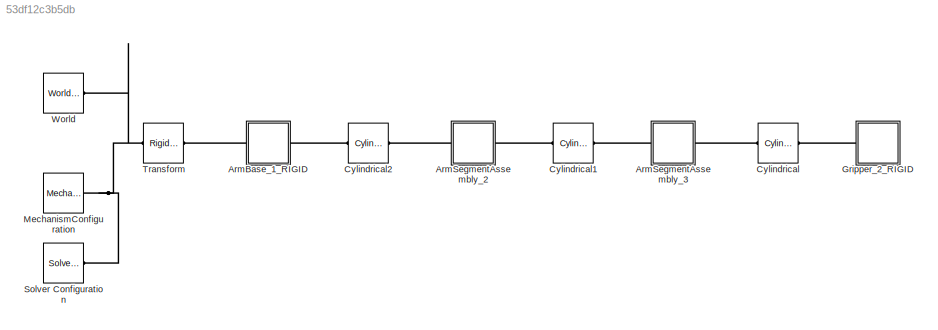
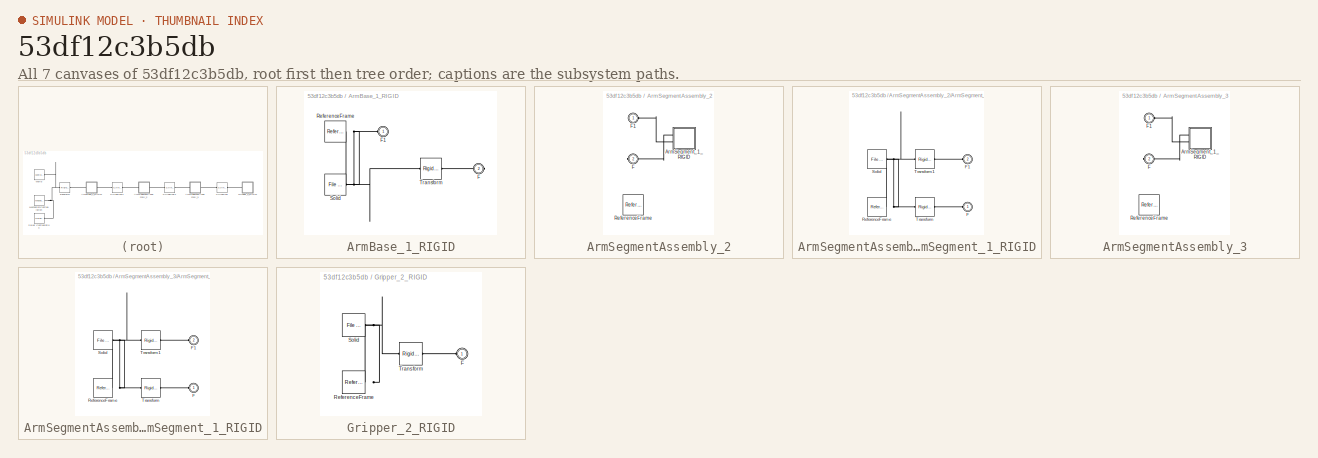
[diagram: thumbnail index - all 7 canvases of the model, root first then tree order]
MODEL slx_53df12c3b5db
KIND model
CONFIG AbsTol = auto
CONFIG EnableMultiTasking = off
CONFIG FixedStep = auto
CONFIG MaxStep = auto
CONFIG MinStep = auto
CONFIG RelTol = 1e-3
CONFIG SampleTimeConstraint = Unconstrained
CONFIG SolverName = VariableStepAuto
CONFIG StartTime = 0.0
CONFIG StopTime = 10.0
WORKSPACE source: external: MATLAB File  (data not in archive)
BLOCK [SubSystem] ArmBase_1_RIGID
  Ports = [0, 0, 0, 0, 0, 1, 1]
  RequestExecContextInheritance = off
BLOCK [PMIOPort] ArmBase_1_RIGID/F
  Port = 2
  Side = Right
BLOCK [PMIOPort] ArmBase_1_RIGID/F1
  Side = Left
BLOCK [Reference] ArmBase_1_RIGID/ReferenceFrame  REF=sm_lib/Frames and
Transforms/Reference
Frame
  Ports = [0, 0, 0, 0, 0, 0, 1]
  SourceBlock = sm_lib/Frames and\nTransforms/Reference\nFrame
  SourceProductBaseCode = MS
  SourceType = Reference\nFrame
BLOCK [Reference] ArmBase_1_RIGID/Solid  REF=sm_lib/Body Elements/File Solid
  Ports = [0, 0, 0, 0, 0, 0, 1]
  SourceBlock = sm_lib/Body Elements/File Solid
  SourceProductBaseCode = MS
  SourceType = File Solid
BLOCK [Reference] ArmBase_1_RIGID/Transform  REF=sm_lib/Frames and
Transforms/Rigid
Transform
  Ports = [0, 0, 0, 0, 0, 1, 1]
  SourceBlock = sm_lib/Frames and\nTransforms/Rigid\nTransform
  SourceProductBaseCode = MS
  SourceType = Rigid\nTransform
BLOCK [SubSystem] ArmSegmentAssembly_2
  Ports = [0, 0, 0, 0, 0, 1, 1]
  RequestExecContextInheritance = off
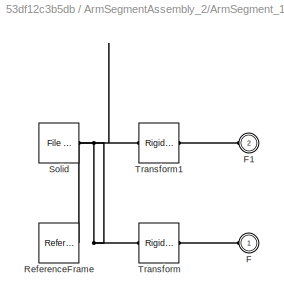
BLOCK [SubSystem] ArmSegmentAssembly_2/ArmSegment_1_RIGID
  Ports = [0, 0, 0, 0, 0, 2]
  RequestExecContextInheritance = off
BLOCK [PMIOPort] ArmSegmentAssembly_2/ArmSegment_1_RIGID/F
  Side = Left
BLOCK [PMIOPort] ArmSegmentAssembly_2/ArmSegment_1_RIGID/F1
  Port = 2
  Side = Left
BLOCK [Reference] ArmSegmentAssembly_2/ArmSegment_1_RIGID/ReferenceFrame  REF=sm_lib/Frames and
Transforms/Reference
Frame
  Ports = [0, 0, 0, 0, 0, 0, 1]
  SourceBlock = sm_lib/Frames and\nTransforms/Reference\nFrame
  SourceProductBaseCode = MS
  SourceType = Reference\nFrame
BLOCK [Reference] ArmSegmentAssembly_2/ArmSegment_1_RIGID/Solid  REF=sm_lib/Body Elements/File Solid
  Ports = [0, 0, 0, 0, 0, 0, 1]
  SourceBlock = sm_lib/Body Elements/File Solid
  SourceProductBaseCode = MS
  SourceType = File Solid
BLOCK [Reference] ArmSegmentAssembly_2/ArmSegment_1_RIGID/Transform  REF=sm_lib/Frames and
Transforms/Rigid
Transform
  Ports = [0, 0, 0, 0, 0, 1, 1]
  SourceBlock = sm_lib/Frames and\nTransforms/Rigid\nTransform
  SourceProductBaseCode = MS
  SourceType = Rigid\nTransform
BLOCK [Reference] ArmSegmentAssembly_2/ArmSegment_1_RIGID/Transform1  REF=sm_lib/Frames and
Transforms/Rigid
Transform
  Ports = [0, 0, 0, 0, 0, 1, 1]
  SourceBlock = sm_lib/Frames and\nTransforms/Rigid\nTransform
  SourceProductBaseCode = MS
  SourceType = Rigid\nTransform
BLOCK [PMIOPort] ArmSegmentAssembly_2/F
  Port = 2
  Side = Right
BLOCK [PMIOPort] ArmSegmentAssembly_2/F1
  Side = Left
BLOCK [Reference] ArmSegmentAssembly_2/ReferenceFrame  REF=sm_lib/Frames and
Transforms/Reference
Frame
  Ports = [0, 0, 0, 0, 0, 0, 1]
  SourceBlock = sm_lib/Frames and\nTransforms/Reference\nFrame
  SourceProductBaseCode = MS
  SourceType = Reference\nFrame
BLOCK [SubSystem] ArmSegmentAssembly_3
  Ports = [0, 0, 0, 0, 0, 1, 1]
  RequestExecContextInheritance = off
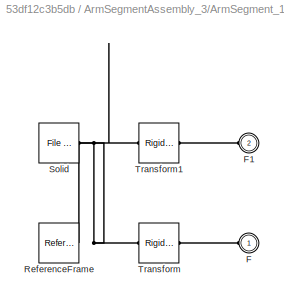
BLOCK [SubSystem] ArmSegmentAssembly_3/ArmSegment_1_RIGID
  Ports = [0, 0, 0, 0, 0, 2]
  RequestExecContextInheritance = off
BLOCK [PMIOPort] ArmSegmentAssembly_3/ArmSegment_1_RIGID/F
  Side = Left
BLOCK [PMIOPort] ArmSegmentAssembly_3/ArmSegment_1_RIGID/F1
  Port = 2
  Side = Left
BLOCK [Reference] ArmSegmentAssembly_3/ArmSegment_1_RIGID/ReferenceFrame  REF=sm_lib/Frames and
Transforms/Reference
Frame
  Ports = [0, 0, 0, 0, 0, 0, 1]
  SourceBlock = sm_lib/Frames and\nTransforms/Reference\nFrame
  SourceProductBaseCode = MS
  SourceType = Reference\nFrame
BLOCK [Reference] ArmSegmentAssembly_3/ArmSegment_1_RIGID/Solid  REF=sm_lib/Body Elements/File Solid
  Ports = [0, 0, 0, 0, 0, 0, 1]
  SourceBlock = sm_lib/Body Elements/File Solid
  SourceProductBaseCode = MS
  SourceType = File Solid
BLOCK [Reference] ArmSegmentAssembly_3/ArmSegment_1_RIGID/Transform  REF=sm_lib/Frames and
Transforms/Rigid
Transform
  Ports = [0, 0, 0, 0, 0, 1, 1]
  SourceBlock = sm_lib/Frames and\nTransforms/Rigid\nTransform
  SourceProductBaseCode = MS
  SourceType = Rigid\nTransform
BLOCK [Reference] ArmSegmentAssembly_3/ArmSegment_1_RIGID/Transform1  REF=sm_lib/Frames and
Transforms/Rigid
Transform
  Ports = [0, 0, 0, 0, 0, 1, 1]
  SourceBlock = sm_lib/Frames and\nTransforms/Rigid\nTransform
  SourceProductBaseCode = MS
  SourceType = Rigid\nTransform
BLOCK [PMIOPort] ArmSegmentAssembly_3/F
  Port = 2
  Side = Right
BLOCK [PMIOPort] ArmSegmentAssembly_3/F1
  Side = Left
BLOCK [Reference] ArmSegmentAssembly_3/ReferenceFrame  REF=sm_lib/Frames and
Transforms/Reference
Frame
  Ports = [0, 0, 0, 0, 0, 0, 1]
  SourceBlock = sm_lib/Frames and\nTransforms/Reference\nFrame
  SourceProductBaseCode = MS
  SourceType = Reference\nFrame
BLOCK [Reference] Cylindrical  REF=sm_lib/Joints/Cylindrical
Joint
  Ports = [0, 0, 0, 0, 0, 1, 1]
  SourceBlock = sm_lib/Joints/Cylindrical\nJoint
  SourceProductBaseCode = MS
  SourceType = Cylindrical\nJoint
BLOCK [Reference] Cylindrical1  REF=sm_lib/Joints/Cylindrical
Joint
  Ports = [0, 0, 0, 0, 0, 1, 1]
  SourceBlock = sm_lib/Joints/Cylindrical\nJoint
  SourceProductBaseCode = MS
  SourceType = Cylindrical\nJoint
BLOCK [Reference] Cylindrical2  REF=sm_lib/Joints/Cylindrical
Joint
  Ports = [0, 0, 0, 0, 0, 1, 1]
  SourceBlock = sm_lib/Joints/Cylindrical\nJoint
  SourceProductBaseCode = MS
  SourceType = Cylindrical\nJoint
BLOCK [SubSystem] Gripper_2_RIGID
  Ports = [0, 0, 0, 0, 0, 1]
  RequestExecContextInheritance = off
BLOCK [PMIOPort] Gripper_2_RIGID/F
  Side = Left
BLOCK [Reference] Gripper_2_RIGID/ReferenceFrame  REF=sm_lib/Frames and
Transforms/Reference
Frame
  Ports = [0, 0, 0, 0, 0, 0, 1]
  SourceBlock = sm_lib/Frames and\nTransforms/Reference\nFrame
  SourceProductBaseCode = MS
  SourceType = Reference\nFrame
BLOCK [Reference] Gripper_2_RIGID/Solid  REF=sm_lib/Body Elements/File Solid
  Ports = [0, 0, 0, 0, 0, 0, 1]
  SourceBlock = sm_lib/Body Elements/File Solid
  SourceProductBaseCode = MS
  SourceType = File Solid
BLOCK [Reference] Gripper_2_RIGID/Transform  REF=sm_lib/Frames and
Transforms/Rigid
Transform
  Ports = [0, 0, 0, 0, 0, 1, 1]
  SourceBlock = sm_lib/Frames and\nTransforms/Rigid\nTransform
  SourceProductBaseCode = MS
  SourceType = Rigid\nTransform
BLOCK [Reference] MechanismConfiguration  REF=sm_lib/Utilities/Mechanism
Configuration
  Ports = [0, 0, 0, 0, 0, 0, 1]
  SourceBlock = sm_lib/Utilities/Mechanism\nConfiguration
  SourceProductBaseCode = MS
  SourceType = Mechanism\nConfiguration
BLOCK [Reference] Solver Configuration  REF=nesl_utility/Solver
Configuration
  Ports = [0, 0, 0, 0, 0, 0, 1]
  SourceBlock = nesl_utility/Solver\nConfiguration
  SourceProductBaseCode = PW,SS
  SourceType = Solver\nConfiguration
BLOCK [Reference] Transform  REF=sm_lib/Frames and
Transforms/Rigid
Transform
  Ports = [0, 0, 0, 0, 0, 1, 1]
  SourceBlock = sm_lib/Frames and\nTransforms/Rigid\nTransform
  SourceProductBaseCode = MS
  SourceType = Rigid\nTransform
BLOCK [Reference] World  REF=sm_lib/Frames and
Transforms/World Frame
  Ports = [0, 0, 0, 0, 0, 0, 1]
  SourceBlock = sm_lib/Frames and\nTransforms/World Frame
  SourceProductBaseCode = MS
  SourceType = World Frame
PNET net1: ArmBase_1_RIGID/F1:RConn1 -- ArmBase_1_RIGID/ReferenceFrame:RConn1 -- ArmBase_1_RIGID/Solid:RConn1 -- ArmBase_1_RIGID/Transform:LConn1
PLINE ArmBase_1_RIGID/F:RConn1 -- ArmBase_1_RIGID/Transform:RConn1
PLINE ArmBase_1_RIGID:LConn1 -- Transform:RConn1
PLINE ArmBase_1_RIGID:RConn1 -- Cylindrical2:LConn1
PLINE ArmSegmentAssembly_2/ArmSegment_1_RIGID/F1:RConn1 -- ArmSegmentAssembly_2/ArmSegment_1_RIGID/Transform1:RConn1
PLINE ArmSegmentAssembly_2/ArmSegment_1_RIGID/F:RConn1 -- ArmSegmentAssembly_2/ArmSegment_1_RIGID/Transform:RConn1
PNET net2: ArmSegmentAssembly_2/ArmSegment_1_RIGID/ReferenceFrame:RConn1 -- ArmSegmentAssembly_2/ArmSegment_1_RIGID/Solid:RConn1 -- ArmSegmentAssembly_2/ArmSegment_1_RIGID/Transform1:LConn1 -- ArmSegmentAssembly_2/ArmSegment_1_RIGID/Transform:LConn1
PLINE ArmSegmentAssembly_2/ArmSegment_1_RIGID:LConn1 -- ArmSegmentAssembly_2/F:RConn1
PLINE ArmSegmentAssembly_2/ArmSegment_1_RIGID:LConn2 -- ArmSegmentAssembly_2/F1:RConn1
PLINE ArmSegmentAssembly_2:LConn1 -- Cylindrical2:RConn1
PLINE ArmSegmentAssembly_2:RConn1 -- Cylindrical1:LConn1
PLINE ArmSegmentAssembly_3/ArmSegment_1_RIGID/F1:RConn1 -- ArmSegmentAssembly_3/ArmSegment_1_RIGID/Transform1:RConn1
PLINE ArmSegmentAssembly_3/ArmSegment_1_RIGID/F:RConn1 -- ArmSegmentAssembly_3/ArmSegment_1_RIGID/Transform:RConn1
PNET net3: ArmSegmentAssembly_3/ArmSegment_1_RIGID/ReferenceFrame:RConn1 -- ArmSegmentAssembly_3/ArmSegment_1_RIGID/Solid:RConn1 -- ArmSegmentAssembly_3/ArmSegment_1_RIGID/Transform1:LConn1 -- ArmSegmentAssembly_3/ArmSegment_1_RIGID/Transform:LConn1
PLINE ArmSegmentAssembly_3/ArmSegment_1_RIGID:LConn1 -- ArmSegmentAssembly_3/F:RConn1
PLINE ArmSegmentAssembly_3/ArmSegment_1_RIGID:LConn2 -- ArmSegmentAssembly_3/F1:RConn1
PLINE ArmSegmentAssembly_3:LConn1 -- Cylindrical1:RConn1
PLINE ArmSegmentAssembly_3:RConn1 -- Cylindrical:LConn1
PLINE Cylindrical:RConn1 -- Gripper_2_RIGID:LConn1
PLINE Gripper_2_RIGID/F:RConn1 -- Gripper_2_RIGID/Transform:RConn1
PNET net4: Gripper_2_RIGID/ReferenceFrame:RConn1 -- Gripper_2_RIGID/Solid:RConn1 -- Gripper_2_RIGID/Transform:LConn1
PNET net5: MechanismConfiguration:RConn1 -- Solver Configuration:RConn1 -- Transform:LConn1 -- World:RConn1
note: PNET lines group multi-terminal physical nets as a canonical sorted terminal list (undirected conserving connections); 2-terminal nets keep the pairwise PLINE form
